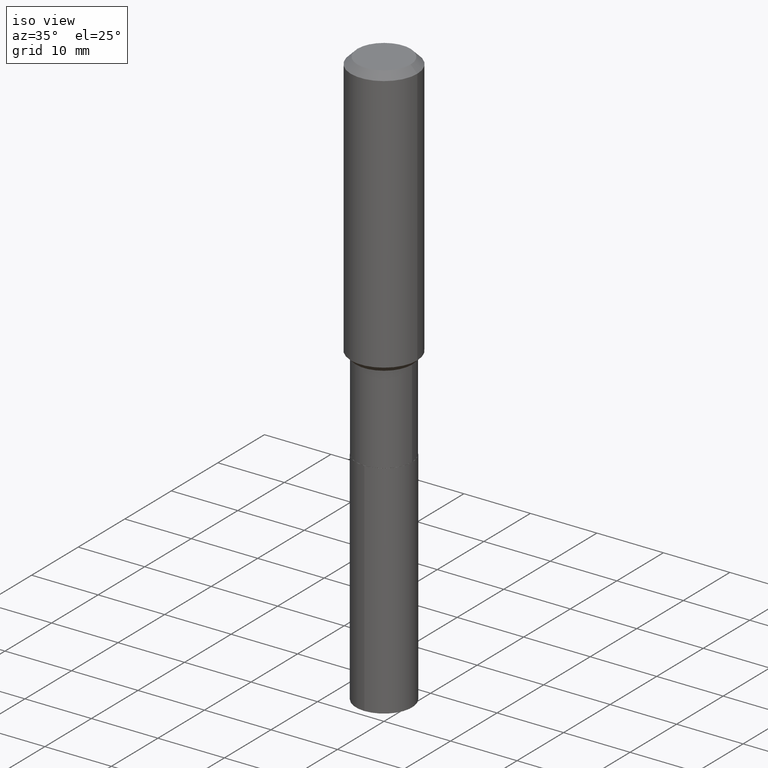
[diagram: clean part render]
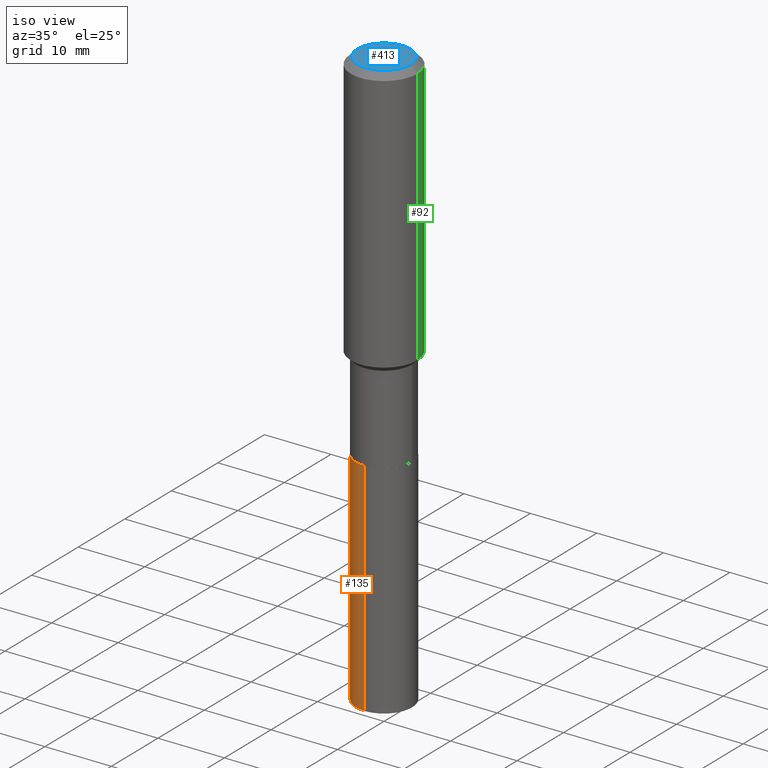
[diagram: same view with three faces highlighted in distinct colors, each labeled with its STEP entity id]
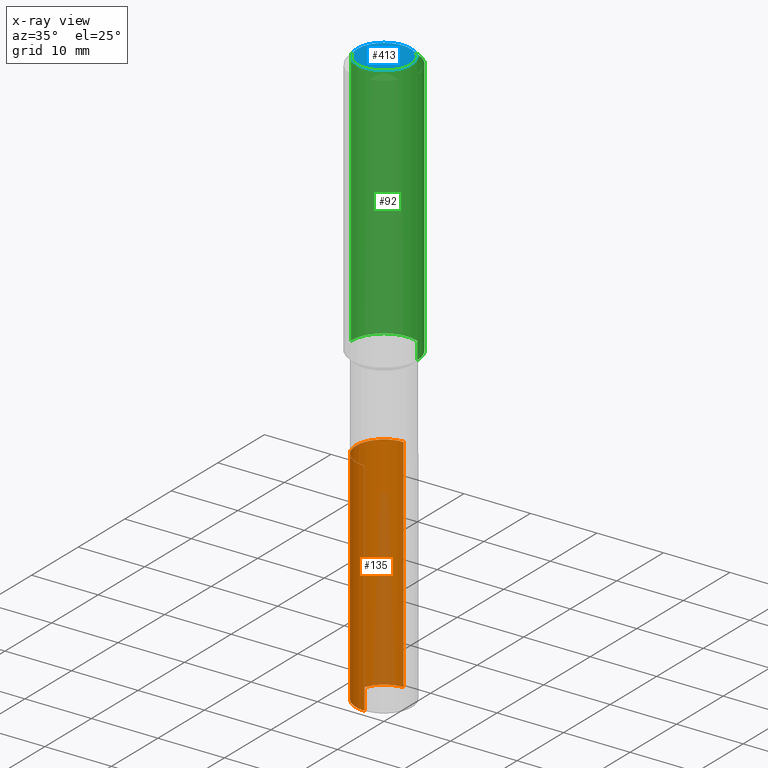
[diagram: x-ray of the same camera — body ghosted, the three highlighted faces saturated]
A machine part, iso view with three faces highlighted in distinct colors.
The next image is the same camera in x-ray (body ghosted, the three faces saturated) — at least one of them is partly hidden behind the body in this view.
Their STEP definitions:

[orange] entity #135 — the highlighted cylindrical surface (edge-blend (fillet) strip) has radius 4.2164 mm, axis along (-0, 0, 1).
#8 = CARTESIAN_POINT ( 'NONE',  ( 5.198822135068982087E-29, -7.422540178246643119E-15, -2.125899999999999679 ) ) ;
#10 = ORIENTED_EDGE ( 'NONE', *, *, #155, .T. ) ;
#15 = DIRECTION ( 'NONE',  ( -2.445222560130398005E-29, 3.491833977208986310E-15, 1.000000000000000000 ) ) ;
#19 = AXIS2_PLACEMENT_3D ( 'NONE', #429, #153, #443 ) ;
#55 = CARTESIAN_POINT ( 'NONE',  ( 1.179500941361818040E-15, 0.1659999999999925979, -2.125900000000000567 ) ) ;
#83 = DIRECTION ( 'NONE',  ( -2.445222560130398005E-29, 3.491833977208986310E-15, 1.000000000000000000 ) ) ;
#84 = CIRCLE ( 'NONE', #143, 0.1660000000000000087 ) ;
#114 = VERTEX_POINT ( 'NONE', #219 ) ;
#115 = ORIENTED_EDGE ( 'NONE', *, *, #255, .T. ) ;
#132 = LINE ( 'NONE', #55, #354 ) ;
#135 = ADVANCED_FACE ( 'NONE', ( #472 ), #287, .T. ) ;
#136 = EDGE_CURVE ( 'NONE', #114, #475, #132, .T. ) ;
#141 = LINE ( 'NONE', #369, #151 ) ;
#143 = AXIS2_PLACEMENT_3D ( 'NONE', #8, #83, #163 ) ;
#144 = ORIENTED_EDGE ( 'NONE', *, *, #136, .F. ) ;
#151 = VECTOR ( 'NONE', #15, 39.37007874015748143 ) ;
#153 = DIRECTION ( 'NONE',  ( -2.445222560130398005E-29, 3.491833977208986310E-15, 1.000000000000000000 ) ) ;
#155 = EDGE_CURVE ( 'NONE', #236, #213, #141, .T. ) ;
#163 = DIRECTION ( 'NONE',  ( -6.982962677686266711E-15, -1.000000000000000000, 3.291383124896702687E-15 ) ) ;
#213 = VERTEX_POINT ( 'NONE', #457 ) ;
#215 = DIRECTION ( 'NONE',  ( -2.445222560130398005E-29, 3.491833977208986310E-15, 1.000000000000000000 ) ) ;
#219 = CARTESIAN_POINT ( 'NONE',  ( 1.179500941361850581E-15, 0.1659999999999879905, -3.438510861047920031 ) ) ;
#236 = VERTEX_POINT ( 'NONE', #424 ) ;
#250 = DIRECTION ( 'NONE',  ( -2.445222560130398005E-29, 3.491833977208986310E-15, 1.000000000000000000 ) ) ;
#255 = EDGE_CURVE ( 'NONE', #114, #236, #309, .T. ) ;
#260 = ORIENTED_EDGE ( 'NONE', *, *, #338, .F. ) ;
#287 = CYLINDRICAL_SURFACE ( 'NONE', #389, 0.1660000000000000087 ) ;
#309 = CIRCLE ( 'NONE', #19, 0.1660000000000000087 ) ;
#338 = EDGE_CURVE ( 'NONE', #475, #213, #84, .T. ) ;
#343 = EDGE_LOOP ( 'NONE', ( #144, #115, #10, #260 ) ) ;
#354 = VECTOR ( 'NONE', #215, 39.37007874015748143 ) ;
#369 = CARTESIAN_POINT ( 'NONE',  ( -1.159171804495868312E-15, -0.1660000000000074194, -2.125899999999999235 ) ) ;
#375 = DIRECTION ( 'NONE',  ( -6.982962677686266711E-15, -1.000000000000000000, 3.291383124896702687E-15 ) ) ;
#388 = CARTESIAN_POINT ( 'NONE',  ( 1.179500941361850581E-15, 0.1659999999999925979, -2.125900000000000567 ) ) ;
#389 = AXIS2_PLACEMENT_3D ( 'NONE', #404, #250, #375 ) ;
#404 = CARTESIAN_POINT ( 'NONE',  ( 5.198822135068982087E-29, -7.422540178246643119E-15, -2.125899999999999679 ) ) ;
#424 = CARTESIAN_POINT ( 'NONE',  ( -1.159171804495836166E-15, -0.1660000000000120268, -3.438510861047918699 ) ) ;
#429 = CARTESIAN_POINT ( 'NONE',  ( 8.408447825175541831E-29, -1.200595938170731200E-14, -3.438510861047919587 ) ) ;
#443 = DIRECTION ( 'NONE',  ( -6.982962677686266711E-15, -1.000000000000000000, 3.291383124896702687E-15 ) ) ;
#457 = CARTESIAN_POINT ( 'NONE',  ( -1.159171804495868312E-15, -0.1660000000000074194, -2.125899999999999235 ) ) ;
#472 = FACE_OUTER_BOUND ( 'NONE', #343, .T. ) ;
#475 = VERTEX_POINT ( 'NONE', #388 ) ;

[blue] entity #413 — the highlighted planar face has unit normal (0, -0, -1).
#33 = CARTESIAN_POINT ( 'NONE',  ( -9.427742298522567634E-47, 1.346031739168368355E-32, 3.855188123715870730E-18 ) ) ;
#49 = DIRECTION ( 'NONE',  ( -2.445468806185136597E-29, 3.491481338843145583E-15, 1.000000000000000000 ) ) ;
#53 = CARTESIAN_POINT ( 'NONE',  ( -4.713871149261283817E-47, 6.730158695841841775E-33, 1.927594061857935365E-18 ) ) ;
#64 = AXIS2_PLACEMENT_3D ( 'NONE', #243, #49, #211 ) ;
#138 = ORIENTED_EDGE ( 'NONE', *, *, #241, .T. ) ;
#157 = CARTESIAN_POINT ( 'NONE',  ( -0.1574800000000000089, 1.168406772637159815E-15, 3.855188123707939751E-18 ) ) ;
#182 = ORIENTED_EDGE ( 'NONE', *, *, #291, .T. ) ;
#196 = DIRECTION ( 'NONE',  ( 1.000000000000000000, -6.982962677686265922E-15, 4.876223630392693006E-29 ) ) ;
#204 = FACE_OUTER_BOUND ( 'NONE', #376, .T. ) ;
#211 = DIRECTION ( 'NONE',  ( 1.000000000000000000, -6.982962677686265922E-15, 4.876223630392693006E-29 ) ) ;
#241 = EDGE_CURVE ( 'NONE', #278, #292, #281, .T. ) ;
#243 = CARTESIAN_POINT ( 'NONE',  ( -9.427742298522567634E-47, 1.346031739168368355E-32, 3.855188123715870730E-18 ) ) ;
#247 = PLANE ( 'NONE',  #483 ) ;
#278 = VERTEX_POINT ( 'NONE', #386 ) ;
#281 = CIRCLE ( 'NONE', #64, 0.1574800000000000089 ) ;
#291 = EDGE_CURVE ( 'NONE', #292, #278, #325, .T. ) ;
#292 = VERTEX_POINT ( 'NONE', #157 ) ;
#324 = DIRECTION ( 'NONE',  ( -1.000000000000000000, 6.982962677686265922E-15, -4.876176775795935793E-29 ) ) ;
#325 = CIRCLE ( 'NONE', #336, 0.1574800000000000089 ) ;
#336 = AXIS2_PLACEMENT_3D ( 'NONE', #33, #351, #196 ) ;
#351 = DIRECTION ( 'NONE',  ( -2.445468806185136597E-29, 3.491481338843145583E-15, 1.000000000000000000 ) ) ;
#376 = EDGE_LOOP ( 'NONE', ( #182, #138 ) ) ;
#386 = CARTESIAN_POINT ( 'NONE',  ( 0.1574800000000000089, -1.284169937930321386E-15, 3.855188123724205385E-18 ) ) ;
#398 = DIRECTION ( 'NONE',  ( 2.438088387897960049E-29, -3.491481338843145188E-15, -1.000000000000000000 ) ) ;
#413 = ADVANCED_FACE ( 'NONE', ( #204 ), #247, .F. ) ;
#483 = AXIS2_PLACEMENT_3D ( 'NONE', #53, #398, #324 ) ;

[green] entity #92 — the highlighted cylindrical surface (partial cylindrical patch) has radius 5 mm, axis along (-0, 0, 1).
#2 = DIRECTION ( 'NONE',  ( 1.000000000000000000, -6.982962677686266711E-15, 0.000000000000000000 ) ) ;
#32 = CIRCLE ( 'NONE', #411, 0.1968500000000000527 ) ;
#40 = ORIENTED_EDGE ( 'NONE', *, *, #188, .F. ) ;
#48 = ORIENTED_EDGE ( 'NONE', *, *, #382, .T. ) ;
#62 = CARTESIAN_POINT ( 'NONE',  ( -0.1968500000000000527, -1.415814646711089373E-15, -0.03937000000000027283 ) ) ;
#87 = CARTESIAN_POINT ( 'NONE',  ( 0.1968500000000002192, -6.866172626901982716E-15, -1.572849999999999637 ) ) ;
#88 = CARTESIAN_POINT ( 'NONE',  ( 0.1968500000000000527, -1.512055823412797583E-15, -0.03937000000000027283 ) ) ;
#90 = DIRECTION ( 'NONE',  ( 1.000000000000000000, -6.982962677686265922E-15, 0.000000000000000000 ) ) ;
#92 = ADVANCED_FACE ( 'NONE', ( #318 ), #487, .T. ) ;
#101 = DIRECTION ( 'NONE',  ( -2.445468806185136877E-29, 3.491481338843145188E-15, 1.000000000000000000 ) ) ;
#109 = VERTEX_POINT ( 'NONE', #62 ) ;
#112 = CARTESIAN_POINT ( 'NONE',  ( 0.000000000000000000, 0.000000000000000000, 0.000000000000000000 ) ) ;
#113 = VERTEX_POINT ( 'NONE', #87 ) ;
#122 = DIRECTION ( 'NONE',  ( -2.445468806185136877E-29, 3.491481338843145188E-15, 1.000000000000000000 ) ) ;
#125 = ORIENTED_EDGE ( 'NONE', *, *, #406, .F. ) ;
#159 = VECTOR ( 'NONE', #122, 39.37007874015748143 ) ;
#177 = LINE ( 'NONE', #355, #159 ) ;
#188 = EDGE_CURVE ( 'NONE', #113, #350, #337, .T. ) ;
#192 = VECTOR ( 'NONE', #101, 39.37007874015748143 ) ;
#234 = CIRCLE ( 'NONE', #282, 0.1968500000000002192 ) ;
#248 = VERTEX_POINT ( 'NONE', #362 ) ;
#282 = AXIS2_PLACEMENT_3D ( 'NONE', #359, #425, #90 ) ;
#284 = DIRECTION ( 'NONE',  ( -2.445468806185136597E-29, 3.491481338843145583E-15, 1.000000000000000000 ) ) ;
#293 = AXIS2_PLACEMENT_3D ( 'NONE', #112, #320, #415 ) ;
#311 = EDGE_LOOP ( 'NONE', ( #48, #384, #125, #40 ) ) ;
#318 = FACE_OUTER_BOUND ( 'NONE', #311, .T. ) ;
#320 = DIRECTION ( 'NONE',  ( -2.445468806185136597E-29, 3.491481338843145583E-15, 1.000000000000000000 ) ) ;
#337 = LINE ( 'NONE', #436, #192 ) ;
#350 = VERTEX_POINT ( 'NONE', #88 ) ;
#355 = CARTESIAN_POINT ( 'NONE',  ( -0.1968500000000001082, 1.398703375343757985E-15, -9.682923725166787881E-30 ) ) ;
#359 = CARTESIAN_POINT ( 'NONE',  ( 3.846355611808290981E-29, -5.491576423799439530E-15, -1.572849999999999637 ) ) ;
#362 = CARTESIAN_POINT ( 'NONE',  ( -0.1968500000000002192, -4.092873048455680953E-15, -1.572849999999999637 ) ) ;
#367 = EDGE_CURVE ( 'NONE', #248, #109, #177, .T. ) ;
#382 = EDGE_CURVE ( 'NONE', #113, #248, #234, .T. ) ;
#384 = ORIENTED_EDGE ( 'NONE', *, *, #367, .T. ) ;
#390 = CARTESIAN_POINT ( 'NONE',  ( 9.627810689950950651E-31, -1.374596203102555808E-16, -0.03937000000000027283 ) ) ;
#406 = EDGE_CURVE ( 'NONE', #350, #109, #32, .T. ) ;
#411 = AXIS2_PLACEMENT_3D ( 'NONE', #390, #284, #2 ) ;
#415 = DIRECTION ( 'NONE',  ( 1.000000000000000000, -6.982962677686266711E-15, 4.876176775795935793E-29 ) ) ;
#425 = DIRECTION ( 'NONE',  ( -2.445468806185136597E-29, 3.491481338843145583E-15, 1.000000000000000000 ) ) ;
#436 = CARTESIAN_POINT ( 'NONE',  ( 0.1968500000000001082, -1.374596203102542397E-15, 9.598753983154305062E-30 ) ) ;
#487 = CYLINDRICAL_SURFACE ( 'NONE', #293, 0.1968500000000001082 ) ;